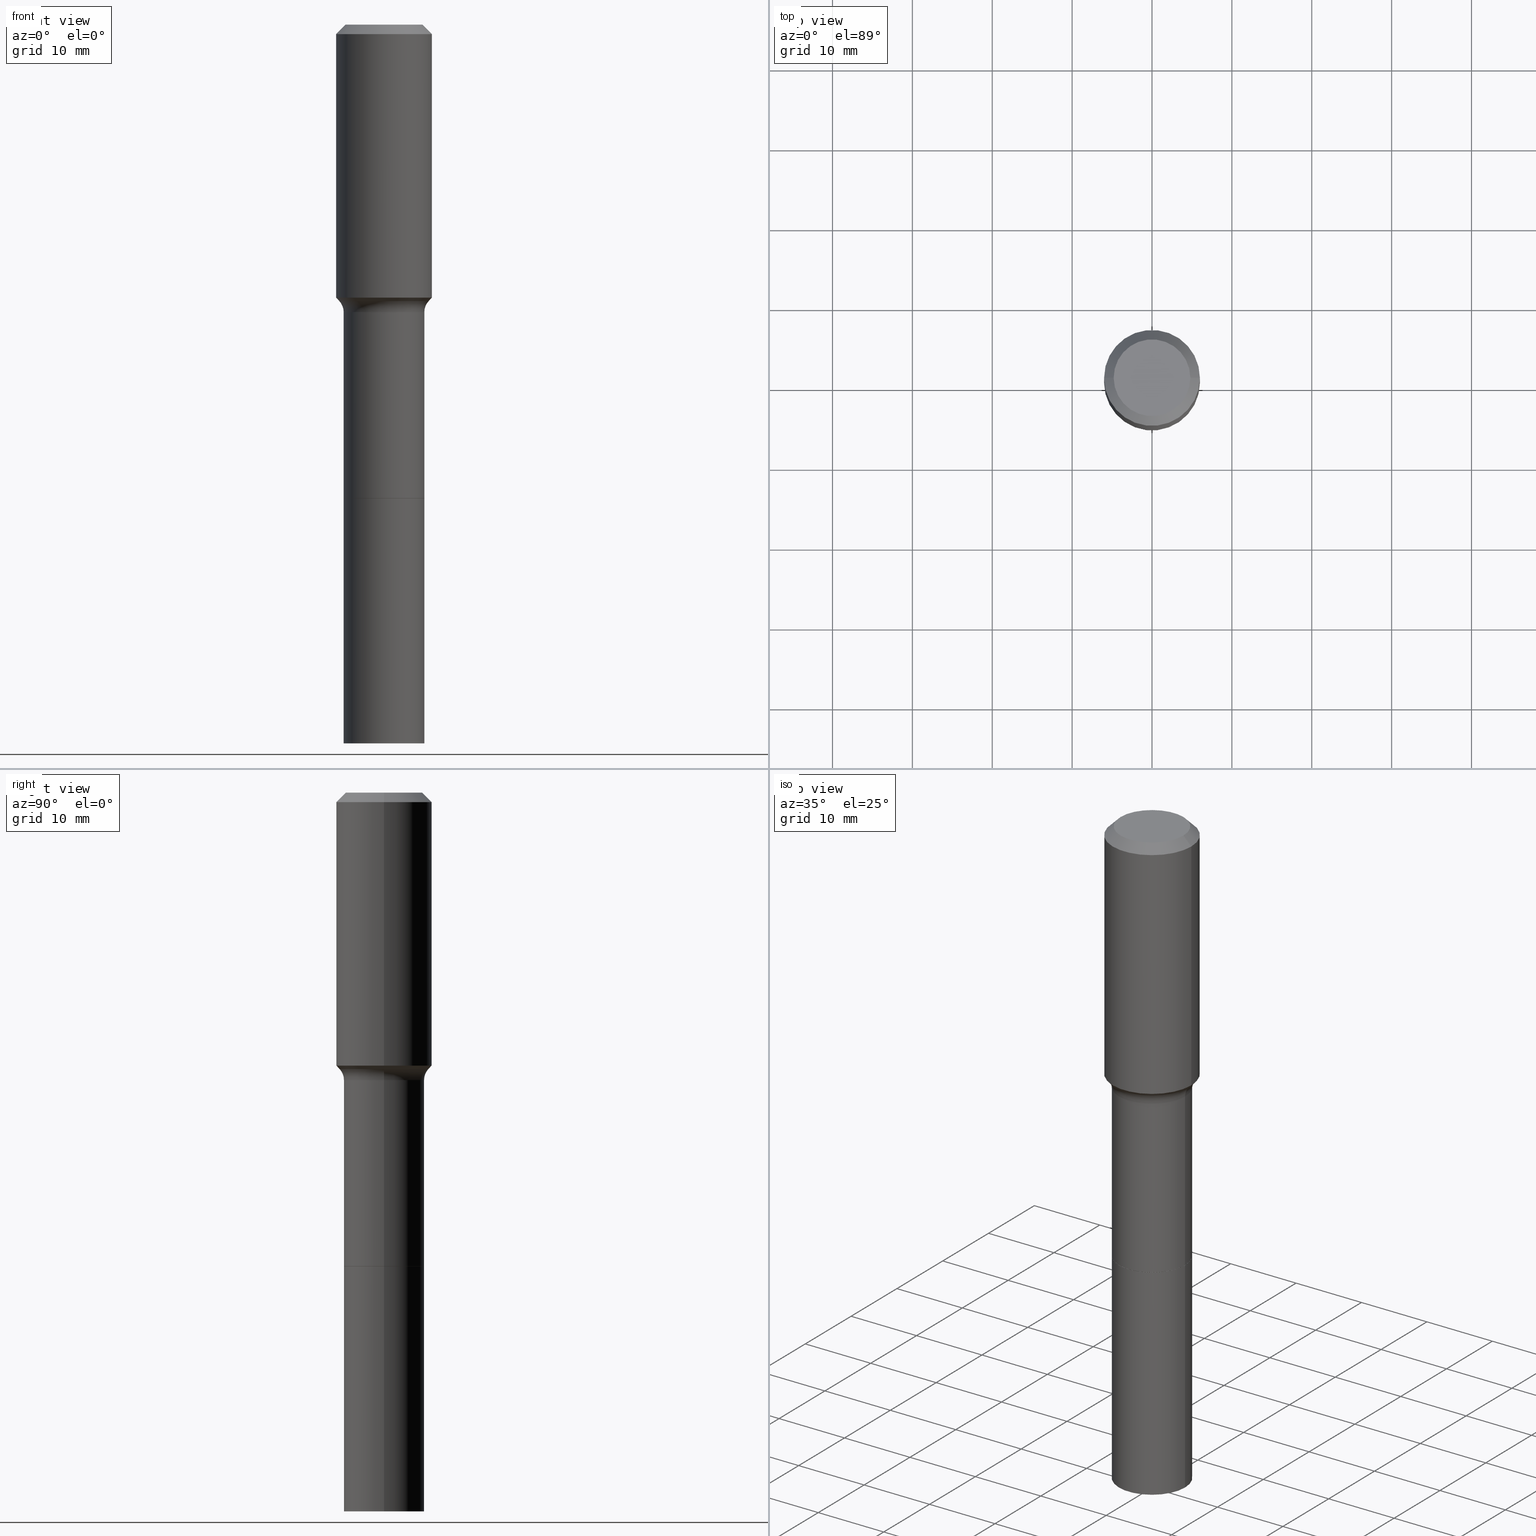
[diagram: canonical four-view strip — front | top / right | iso, engineering-drawing reading convention]
A machine part, canonical four-view strip (front | top / right | iso — engineering-drawing reading convention). The complete STEP part file that produces these views, byte-faithful:
ISO-10303-21;
HEADER;
FILE_DESCRIPTION (( 'STEP AP203' ),
    '1' );
FILE_NAME ('67778.STEP',
    '2025-04-01T15:30:27',
    ( '' ),
    ( '' ),
    'SwSTEP 2.0',
    'SolidWorks 2024',
    '' );
FILE_SCHEMA (( 'CONFIG_CONTROL_DESIGN' ));
ENDSEC;

DATA;
#1 = CARTESIAN_POINT ( 'NONE',  ( 8.665029620955794069E-29, -1.237136582792291707E-14, -3.543299999999999894 ) ) ;
#2 = ORIENTED_EDGE ( 'NONE', *, *, #351, .F. ) ;
#3 = CYLINDRICAL_SURFACE ( 'NONE', #182, 0.1988000000000000045 ) ;
#4 = EDGE_LOOP ( 'NONE', ( #105, #435, #349, #185 ) ) ;
#5 = AXIS2_PLACEMENT_3D ( 'NONE', #108, #430, #391 ) ;
#6 = AXIS2_PLACEMENT_3D ( 'NONE', #491, #92, #411 ) ;
#7 = CARTESIAN_POINT ( 'NONE',  ( 3.332538481774012867E-29, -4.757981737760002382E-15, -1.362740131195000037 ) ) ;
#8 = DIRECTION ( 'NONE',  ( 1.000000000000000000, -6.982962677686265922E-15, 4.876176775795935793E-29 ) ) ;
#9 = EDGE_CURVE ( 'NONE', #410, #212, #164, .T. ) ;
#10 = DIRECTION ( 'NONE',  ( 1.000000000000000000, 0.000000000000000000, 0.000000000000000000 ) ) ;
#11 = EDGE_CURVE ( 'NONE', #505, #212, #413, .T. ) ;
#12 = CARTESIAN_POINT ( 'NONE',  ( 3.465962939006193759E-29, -4.948476501542390442E-15, -1.417300000000000004 ) ) ;
#13 = DIRECTION ( 'NONE',  ( 1.000000000000000000, -6.982962677686266711E-15, 4.876176775795935793E-29 ) ) ;
#14 = CARTESIAN_POINT ( 'NONE',  ( 3.332538481774012867E-29, -4.757981737760002382E-15, -1.362740131195000037 ) ) ;
#15 = FACE_OUTER_BOUND ( 'NONE', #479, .T. ) ;
#16 = ORIENTED_EDGE ( 'NONE', *, *, #456, .T. ) ;
#17 = CARTESIAN_POINT ( 'NONE',  ( -0.1988000000000000045, -6.737605930570474412E-15, -2.334299999999999820 ) ) ;
#18 = AXIS2_PLACEMENT_3D ( 'NONE', #361, #236, #204 ) ;
#19 = EDGE_LOOP ( 'NONE', ( #203, #286 ) ) ;
#20 = EDGE_CURVE ( 'NONE', #464, #327, #338, .T. ) ;
#21 = CARTESIAN_POINT ( 'NONE',  ( -0.2362000000000000766, 1.678301941865357183E-15, -1.161852468318209177E-29 ) ) ;
#22 = CC_DESIGN_PERSON_AND_ORGANIZATION_ASSIGNMENT ( #272, #311, ( #222 ) ) ;
#23 = PERSON_AND_ORGANIZATION ( #426, #27 ) ;
#24 = AXIS2_PLACEMENT_3D ( 'NONE', #1, #394, #161 ) ;
#25 = EDGE_CURVE ( 'NONE', #45, #323, #76, .T. ) ;
#26 = AXIS2_PLACEMENT_3D ( 'NONE', #14, #130, #336 ) ;
#27 = ORGANIZATION ( 'UNSPECIFIED', 'UNSPECIFIED', '' ) ;
#28 = MANIFOLD_SOLID_BREP ( 'Body-Move/Copy2[2]', #63 ) ;
#29 = ORIENTED_EDGE ( 'NONE', *, *, #298, .F. ) ;
#30 = LOCAL_TIME ( 11, 30, 27.00000000000000000, #423 ) ;
#31 = FACE_OUTER_BOUND ( 'NONE', #245, .T. ) ;
#32 = FACE_OUTER_BOUND ( 'NONE', #102, .T. ) ;
#33 = ORIENTED_EDGE ( 'NONE', *, *, #207, .F. ) ;
#34 = DATE_AND_TIME ( #280, #506 ) ;
#35 = ORIENTED_EDGE ( 'NONE', *, *, #439, .F. ) ;
#36 = CIRCLE ( 'NONE', #221, 0.1988000000000000045 ) ;
#37 = DIRECTION ( 'NONE',  ( -0.7071067811865453523, 2.468850131082234184E-15, -0.7071067811865496822 ) ) ;
#38 = CYLINDRICAL_SURFACE ( 'NONE', #343, 0.2362000000000000766 ) ;
#39 = CALENDAR_DATE ( 2025, 1, 4 ) ;
#40 = CYLINDRICAL_SURFACE ( 'NONE', #189, 0.1988000000000000045 ) ;
#41 = COORDINATED_UNIVERSAL_TIME_OFFSET ( 5, 0, .BEHIND. ) ;
#42 = LINE ( 'NONE', #202, #46 ) ;
#43 = EDGE_CURVE ( 'NONE', #73, #321, #36, .T. ) ;
#44 = ADVANCED_FACE ( 'NONE', ( #354 ), #98, .T. ) ;
#45 = VERTEX_POINT ( 'NONE', #111 ) ;
#46 = VECTOR ( 'NONE', #359, 39.37007874015748854 ) ;
#47 = DIRECTION ( 'NONE',  ( 0.7071067811865453523, -7.319954787623248157E-15, -0.7071067811865496822 ) ) ;
#48 = ORIENTED_EDGE ( 'NONE', *, *, #507, .T. ) ;
#49 = FACE_OUTER_BOUND ( 'NONE', #256, .T. ) ;
#50 = ORIENTED_EDGE ( 'NONE', *, *, #422, .T. ) ;
#51 = CARTESIAN_POINT ( 'NONE',  ( 0.2361999999999999933, -1.814313362916447440E-15, -0.04724000000000028870 ) ) ;
#52 = CONICAL_SURFACE ( 'NONE', #26, 0.2202917038704662045, 0.7504915783575657473 ) ;
#53 = DIRECTION ( 'NONE',  ( -2.445468806185136597E-29, 3.491481338843145583E-15, 1.000000000000000000 ) ) ;
#54 = PERSON_AND_ORGANIZATION ( #426, #27 ) ;
#55 = EDGE_LOOP ( 'NONE', ( #362, #382 ) ) ;
#56 = DIRECTION ( 'NONE',  ( -1.000000000000000000, 6.982962677686266711E-15, 0.000000000000000000 ) ) ;
#57 = CARTESIAN_POINT ( 'NONE',  ( 0.1988000000000000045, -1.388212980324029928E-15, 9.693839430282320098E-30 ) ) ;
#58 = ORIENTED_EDGE ( 'NONE', *, *, #456, .F. ) ;
#59 = CARTESIAN_POINT ( 'NONE',  ( 5.708457834277963987E-29, -8.150164889261554205E-15, -2.334299999999999820 ) ) ;
#60 = DIRECTION ( 'NONE',  ( 1.000000000000000000, -6.982962677686273810E-15, 0.000000000000000000 ) ) ;
#61 = ADVANCED_FACE ( 'NONE', ( #81 ), #357, .T. ) ;
#62 = CARTESIAN_POINT ( 'NONE',  ( 0.1983000000000000040, -9.534886388246739745E-15, -2.334299999999999820 ) ) ;
#63 = CLOSED_SHELL ( 'NONE', ( #296, #304, #160, #409, #106, #94, #230, #356, #428, #477, #136, #155, #363, #44 ) ) ;
#64 = PERSON_AND_ORGANIZATION_ROLE ( 'classification_officer' ) ;
#65 = CARTESIAN_POINT ( 'NONE',  ( 0.000000000000000000, 0.000000000000000000, 0.000000000000000000 ) ) ;
#66 = CALENDAR_DATE ( 2025, 1, 4 ) ;
#67 = UNCERTAINTY_MEASURE_WITH_UNIT (LENGTH_MEASURE( 1.000000000000000082E-05 ), #90, 'distance_accuracy_value', 'NONE');
#68 = ORIENTED_EDGE ( 'NONE', *, *, #248, .T. ) ;
#69 = CLOSED_SHELL ( 'NONE', ( #193, #61, #378, #460 ) ) ;
#70 = VECTOR ( 'NONE', #297, 39.37007874015748143 ) ;
#71 = ORIENTED_EDGE ( 'NONE', *, *, #9, .F. ) ;
#72 = APPROVAL_PERSON_ORGANIZATION ( #141, #100, #259 ) ;
#73 = VERTEX_POINT ( 'NONE', #271 ) ;
#74 = DIRECTION ( 'NONE',  ( -2.445468806185136877E-29, 3.491481338843145188E-15, 1.000000000000000000 ) ) ;
#75 = AXIS2_PLACEMENT_3D ( 'NONE', #246, #83, #8 ) ;
#76 = LINE ( 'NONE', #313, #150 ) ;
#77 = EDGE_CURVE ( 'NONE', #231, #445, #241, .T. ) ;
#78 = DIRECTION ( 'NONE',  ( -2.445468806185136597E-29, 3.491481338843145583E-15, 1.000000000000000000 ) ) ;
#79 = CARTESIAN_POINT ( 'NONE',  ( 3.465962939006193759E-29, -4.948476501542390442E-15, -1.417300000000000004 ) ) ;
#80 = CIRCLE ( 'NONE', #415, 0.2202917038704662045 ) ;
#81 = FACE_OUTER_BOUND ( 'NONE', #277, .T. ) ;
#82 = EDGE_CURVE ( 'NONE', #310, #170, #438, .T. ) ;
#83 = DIRECTION ( 'NONE',  ( -2.438088387897960049E-29, 3.491481338843145188E-15, 1.000000000000000000 ) ) ;
#84 = ORIENTED_EDGE ( 'NONE', *, *, #20, .F. ) ;
#85 = DIRECTION ( 'NONE',  ( -2.445468806185136597E-29, 3.491481338843145583E-15, 1.000000000000000000 ) ) ;
#86 = ORIENTED_EDGE ( 'NONE', *, *, #469, .T. ) ;
#87 = VECTOR ( 'NONE', #37, 39.37007874015748143 ) ;
#88 = CONICAL_SURFACE ( 'NONE', #227, 0.2202917038704662045, 0.7504915783575657473 ) ;
#89 = CARTESIAN_POINT ( 'NONE',  ( 5.708457834277963987E-29, -8.150164889261554205E-15, -2.334299999999999820 ) ) ;
#90 =( CONVERSION_BASED_UNIT ( 'INCH', #414 ) LENGTH_UNIT ( ) NAMED_UNIT ( #407 ) );
#91 = DIRECTION ( 'NONE',  ( -2.445468806185136597E-29, 3.491481338843145583E-15, 1.000000000000000000 ) ) ;
#92 = DIRECTION ( 'NONE',  ( -2.445468806185136597E-29, 3.491481338843145583E-15, 1.000000000000000000 ) ) ;
#93 = CYLINDRICAL_SURFACE ( 'NONE', #112, 0.1988000000000000045 ) ;
#94 = ADVANCED_FACE ( 'NONE', ( #467 ), #40, .T. ) ;
#95 = CARTESIAN_POINT ( 'NONE',  ( 8.665029620955794069E-29, -1.237136582792291707E-14, -3.543299999999999894 ) ) ;
#96 = ORIENTED_EDGE ( 'NONE', *, *, #208, .F. ) ;
#97 = FACE_OUTER_BOUND ( 'NONE', #4, .T. ) ;
#98 = CONICAL_SURFACE ( 'NONE', #436, 0.1983000000000000040, 0.7853981633975849475 ) ;
#99 = CIRCLE ( 'NONE', #144, 0.07999999999999983513 ) ;
#100 = APPROVAL ( #306, 'UNSPECIFIED' ) ;
#101 = CARTESIAN_POINT ( 'NONE',  ( 5.708457834277963987E-29, -8.150164889261554205E-15, -2.334299999999999820 ) ) ;
#102 = EDGE_LOOP ( 'NONE', ( #29, #283, #443, #476 ) ) ;
#103 = ORIENTED_EDGE ( 'NONE', *, *, #507, .F. ) ;
#104 = CIRCLE ( 'NONE', #135, 0.2361999999999999933 ) ;
#105 = ORIENTED_EDGE ( 'NONE', *, *, #255, .F. ) ;
#106 = ADVANCED_FACE ( 'NONE', ( #353 ), #309, .F. ) ;
#107 = EDGE_CURVE ( 'NONE', #323, #170, #104, .T. ) ;
#108 = CARTESIAN_POINT ( 'NONE',  ( 1.155239464041865682E-30, -1.649375784469512105E-16, -0.04724000000000028870 ) ) ;
#109 = APPROVAL_DATE_TIME ( #34, #186 ) ;
#110 = FACE_OUTER_BOUND ( 'NONE', #335, .T. ) ;
#111 = CARTESIAN_POINT ( 'NONE',  ( 0.1889600000000000168, -1.540873453589747738E-15, 3.855188123725863225E-18 ) ) ;
#112 = AXIS2_PLACEMENT_3D ( 'NONE', #295, #366, #402 ) ;
#113 = APPROVAL_PERSON_ORGANIZATION ( #201, #186, #516 ) ;
#114 = CARTESIAN_POINT ( 'NONE',  ( -0.2361999999999999933, 1.484438206022545019E-15, -0.04724000000000028870 ) ) ;
#115 = APPROVAL_ROLE ( '' ) ;
#116 = VERTEX_POINT ( 'NONE', #315 ) ;
#117 = DIRECTION ( 'NONE',  ( 1.000000000000000000, -6.982962677686266711E-15, 4.876176775795935793E-29 ) ) ;
#118 = ORIENTED_EDGE ( 'NONE', *, *, #319, .T. ) ;
#119 = DIRECTION ( 'NONE',  ( 1.000000000000000000, -6.982962677686266711E-15, 4.883557194083112901E-29 ) ) ;
#120 = CONICAL_SURFACE ( 'NONE', #493, 0.1983000000000000040, 0.7853981633975849475 ) ;
#121 = ORIENTED_EDGE ( 'NONE', *, *, #11, .F. ) ;
#122 = ADVANCED_BREP_SHAPE_REPRESENTATION ( '67778', ( #376, #28, #262 ), #151 ) ;
#123 = DIRECTION ( 'NONE',  ( -0.7071067811866441621, 7.493145998870704414E-15, 0.7071067811864508723 ) ) ;
#124 = LINE ( 'NONE', #404, #513 ) ;
#125 = ORIENTED_EDGE ( 'NONE', *, *, #503, .T. ) ;
#126 = SECURITY_CLASSIFICATION ( '', '', #301 ) ;
#127 = CARTESIAN_POINT ( 'NONE',  ( 0.2362000000000000766, -1.649375784469496722E-15, 1.151752954443000368E-29 ) ) ;
#128 = DIRECTION ( 'NONE',  ( -2.445468806185136597E-29, 3.491481338843145583E-15, 1.000000000000000000 ) ) ;
#129 = DIRECTION ( 'NONE',  ( -2.445468806185136597E-29, 3.491481338843145583E-15, 1.000000000000000000 ) ) ;
#130 = DIRECTION ( 'NONE',  ( -2.445468806185136597E-29, 3.491481338843145583E-15, 1.000000000000000000 ) ) ;
#131 = CARTESIAN_POINT ( 'NONE',  ( -0.1889600000000000168, 1.401969416799070942E-15, 3.855188123706346622E-18 ) ) ;
#132 = CARTESIAN_POINT ( 'NONE',  ( 0.1983000000000000040, -9.534886388246739745E-15, -2.334299999999999820 ) ) ;
#133 = ORIENTED_EDGE ( 'NONE', *, *, #373, .F. ) ;
#134 = EDGE_CURVE ( 'NONE', #327, #73, #473, .T. ) ;
#135 = AXIS2_PLACEMENT_3D ( 'NONE', #510, #509, #275 ) ;
#136 = ADVANCED_FACE ( 'NONE', ( #274 ), #405, .T. ) ;
#137 = DIRECTION ( 'NONE',  ( -2.445468806185136597E-29, 3.491481338843145583E-15, 1.000000000000000000 ) ) ;
#138 = ORIENTED_EDGE ( 'NONE', *, *, #180, .F. ) ;
#139 = CARTESIAN_POINT ( 'NONE',  ( 0.1987999999999999490, -6.336689481866418990E-15, -1.417300000000000004 ) ) ;
#140 = CARTESIAN_POINT ( 'NONE',  ( 0.2787999999999998813, -6.895326496081319853E-15, -1.417299999999999560 ) ) ;
#141 = PERSON_AND_ORGANIZATION ( #426, #27 ) ;
#142 = CYLINDRICAL_SURFACE ( 'NONE', #463, 0.2362000000000000766 ) ;
#143 = AXIS2_PLACEMENT_3D ( 'NONE', #400, #190, #352 ) ;
#144 = AXIS2_PLACEMENT_3D ( 'NONE', #140, #300, #60 ) ;
#145 = CARTESIAN_POINT ( 'NONE',  ( 8.665029620955794069E-29, -1.237136582792291707E-14, -3.543299999999999894 ) ) ;
#146 = CARTESIAN_POINT ( 'NONE',  ( 5.708457834277963987E-29, -8.150164889261554205E-15, -2.334299999999999820 ) ) ;
#147 = EDGE_LOOP ( 'NONE', ( #162, #16, #217, #418 ) ) ;
#148 = CC_DESIGN_DATE_AND_TIME_ASSIGNMENT ( #303, #379, ( #126 ) ) ;
#149 = ORIENTED_EDGE ( 'NONE', *, *, #43, .T. ) ;
#150 = VECTOR ( 'NONE', #47, 39.37007874015748143 ) ;
#151 =( GEOMETRIC_REPRESENTATION_CONTEXT ( 3 ) GLOBAL_UNCERTAINTY_ASSIGNED_CONTEXT ( ( #67 ) ) GLOBAL_UNIT_ASSIGNED_CONTEXT ( ( #90, #223, #219 ) ) REPRESENTATION_CONTEXT ( 'NONE', 'WORKASPACE' ) );
#152 = FACE_OUTER_BOUND ( 'NONE', #55, .T. ) ;
#153 = PRODUCT ( '67778', '67778', '', ( #331 ) ) ;
#154 = CARTESIAN_POINT ( 'NONE',  ( 0.1988000000000000045, -9.538377869585582753E-15, -2.334299999999999820 ) ) ;
#155 = ADVANCED_FACE ( 'NONE', ( #152 ), #511, .F. ) ;
#156 = DIRECTION ( 'NONE',  ( -2.445468806185136597E-29, 3.491481338843145583E-15, 1.000000000000000000 ) ) ;
#157 = CIRCLE ( 'NONE', #211, 0.1889600000000000168 ) ;
#158 = DIRECTION ( 'NONE',  ( -2.445468806185136597E-29, 3.491481338843145583E-15, 1.000000000000000000 ) ) ;
#159 = PERSON_AND_ORGANIZATION ( #426, #27 ) ;
#160 = ADVANCED_FACE ( 'NONE', ( #392 ), #38, .T. ) ;
#161 = DIRECTION ( 'NONE',  ( -1.000000000000000000, 6.982962677686265922E-15, -4.876176775795935793E-29 ) ) ;
#162 = ORIENTED_EDGE ( 'NONE', *, *, #77, .T. ) ;
#163 = DIRECTION ( 'NONE',  ( -2.445468806185136597E-29, 3.491481338843145583E-15, 1.000000000000000000 ) ) ;
#164 = CIRCLE ( 'NONE', #317, 0.1988000000000000322 ) ;
#165 = EDGE_LOOP ( 'NONE', ( #58, #233, #517, #461 ) ) ;
#166 = VECTOR ( 'NONE', #332, 39.37007874015748143 ) ;
#167 = DIRECTION ( 'NONE',  ( 1.000000000000000000, -6.982962677686266711E-15, 0.000000000000000000 ) ) ;
#168 = DIRECTION ( 'NONE',  ( 1.000000000000000000, -6.982962677686266711E-15, 4.876185090822587894E-29 ) ) ;
#169 = APPLICATION_PROTOCOL_DEFINITION ( 'international standard', 'config_control_design', 1994, #482 ) ;
#170 = VERTEX_POINT ( 'NONE', #478 ) ;
#171 = DIRECTION ( 'NONE',  ( -2.445468806185136597E-29, 3.491481338843145583E-15, 1.000000000000000000 ) ) ;
#172 = LINE ( 'NONE', #57, #70 ) ;
#173 = EDGE_CURVE ( 'NONE', #445, #231, #380, .T. ) ;
#174 = DIRECTION ( 'NONE',  ( -2.445468806185136597E-29, 3.491481338843145583E-15, 1.000000000000000000 ) ) ;
#175 = ORIENTED_EDGE ( 'NONE', *, *, #82, .F. ) ;
#176 = AXIS2_PLACEMENT_3D ( 'NONE', #89, #171, #288 ) ;
#177 = FACE_OUTER_BOUND ( 'NONE', #19, .T. ) ;
#178 = DIRECTION ( 'NONE',  ( 1.000000000000000000, -6.982962677686261977E-15, 0.000000000000000000 ) ) ;
#179 = ORIENTED_EDGE ( 'NONE', *, *, #207, .T. ) ;
#180 = EDGE_CURVE ( 'NONE', #265, #252, #234, .T. ) ;
#181 = DIRECTION ( 'NONE',  ( 2.438088387897960049E-29, -3.491481338843145188E-15, -1.000000000000000000 ) ) ;
#182 = AXIS2_PLACEMENT_3D ( 'NONE', #412, #364, #341 ) ;
#183 = SHAPE_DEFINITION_REPRESENTATION ( #514, #122 ) ;
#184 = EDGE_CURVE ( 'NONE', #321, #73, #302, .T. ) ;
#185 = ORIENTED_EDGE ( 'NONE', *, *, #248, .F. ) ;
#186 = APPROVAL ( #358, 'UNSPECIFIED' ) ;
#187 = CYLINDRICAL_SURFACE ( 'NONE', #494, 0.1988000000000000045 ) ;
#188 = ORIENTED_EDGE ( 'NONE', *, *, #43, .F. ) ;
#189 = AXIS2_PLACEMENT_3D ( 'NONE', #515, #431, #427 ) ;
#190 = DIRECTION ( 'NONE',  ( -2.445468806185136597E-29, 3.491481338843145583E-15, 1.000000000000000000 ) ) ;
#191 = PRODUCT_RELATED_PRODUCT_CATEGORY ( 'detail', '', ( #153 ) ) ;
#192 = DIRECTION ( 'NONE',  ( 1.000000000000000000, -6.982962677686261977E-15, 0.000000000000000000 ) ) ;
#193 = ADVANCED_FACE ( 'NONE', ( #492 ), #93, .T. ) ;
#194 = DIRECTION ( 'NONE',  ( -1.000000000000000000, 6.982962677686265922E-15, -4.876176775795935793E-29 ) ) ;
#195 = CC_DESIGN_SECURITY_CLASSIFICATION ( #126, ( #222 ) ) ;
#196 = DIRECTION ( 'NONE',  ( 2.438088387897960049E-29, -3.491481338843145188E-15, -1.000000000000000000 ) ) ;
#197 = DATE_AND_TIME ( #39, #326 ) ;
#198 = APPLICATION_CONTEXT ( 'configuration controlled 3d designs of mechanical parts and assemblies' ) ;
#199 = CARTESIAN_POINT ( 'NONE',  ( -0.1983000000000000040, -6.741158644249275311E-15, -2.334299999999999820 ) ) ;
#200 = DIRECTION ( 'NONE',  ( -2.445468806185136597E-29, 3.491481338843145583E-15, 1.000000000000000000 ) ) ;
#201 = PERSON_AND_ORGANIZATION ( #426, #27 ) ;
#202 = CARTESIAN_POINT ( 'NONE',  ( -0.2202917038704662045, -3.192715038426253305E-15, -1.362740131195000037 ) ) ;
#203 = ORIENTED_EDGE ( 'NONE', *, *, #264, .F. ) ;
#204 = DIRECTION ( 'NONE',  ( 1.000000000000000000, -6.982962677686268288E-15, 0.000000000000000000 ) ) ;
#205 = DIRECTION ( 'NONE',  ( 7.105427357601001859E-15, 1.000000000000000000, -3.491481338843145583E-15 ) ) ;
#206 = ORIENTED_EDGE ( 'NONE', *, *, #11, .T. ) ;
#207 = EDGE_CURVE ( 'NONE', #474, #116, #367, .T. ) ;
#208 = EDGE_CURVE ( 'NONE', #45, #310, #157, .T. ) ;
#209 = LINE ( 'NONE', #17, #266 ) ;
#210 = CARTESIAN_POINT ( 'NONE',  ( 1.155239464041865682E-30, -1.649375784469512105E-16, -0.04724000000000028870 ) ) ;
#211 = AXIS2_PLACEMENT_3D ( 'NONE', #489, #455, #168 ) ;
#212 = VERTEX_POINT ( 'NONE', #291 ) ;
#213 = CIRCLE ( 'NONE', #242, 0.07999999999999983513 ) ;
#214 = DIRECTION ( 'NONE',  ( 1.000000000000000000, -6.982962677686266711E-15, 0.000000000000000000 ) ) ;
#215 = ORIENTED_EDGE ( 'NONE', *, *, #82, .T. ) ;
#216 = CARTESIAN_POINT ( 'NONE',  ( 3.465962939006193198E-29, -4.948476501542388865E-15, -1.417299999999999560 ) ) ;
#217 = ORIENTED_EDGE ( 'NONE', *, *, #107, .F. ) ;
#218 = DIRECTION ( 'NONE',  ( 1.000000000000000000, -6.982962677686266711E-15, 4.883557194083112901E-29 ) ) ;
#219 =( NAMED_UNIT ( * ) SI_UNIT ( $, .STERADIAN. ) SOLID_ANGLE_UNIT ( ) );
#220 = EDGE_LOOP ( 'NONE', ( #360, #118, #206, #71 ) ) ;
#221 = AXIS2_PLACEMENT_3D ( 'NONE', #470, #156, #192 ) ;
#222 = PRODUCT_DEFINITION_FORMATION_WITH_SPECIFIED_SOURCE ( 'ANY', '', #153, .NOT_KNOWN. ) ;
#223 =( NAMED_UNIT ( * ) PLANE_ANGLE_UNIT ( ) SI_UNIT ( $, .RADIAN. ) );
#224 = DIRECTION ( 'NONE',  ( 0.000000000000000000, 0.000000000000000000, 1.000000000000000000 ) ) ;
#225 = DATE_AND_TIME ( #299, #465 ) ;
#226 = AXIS2_PLACEMENT_3D ( 'NONE', #79, #281, #239 ) ;
#227 = AXIS2_PLACEMENT_3D ( 'NONE', #7, #329, #167 ) ;
#228 = DIRECTION ( 'NONE',  ( -2.445468806185136597E-29, 3.491481338843145583E-15, 1.000000000000000000 ) ) ;
#229 = ORIENTED_EDGE ( 'NONE', *, *, #393, .T. ) ;
#230 = ADVANCED_FACE ( 'NONE', ( #97 ), #3, .T. ) ;
#231 = VERTEX_POINT ( 'NONE', #372 ) ;
#232 = CARTESIAN_POINT ( 'NONE',  ( -0.1988000000000000045, -8.848206399901156635E-15, -3.543299999999999894 ) ) ;
#233 = ORIENTED_EDGE ( 'NONE', *, *, #173, .T. ) ;
#234 = CIRCLE ( 'NONE', #226, 0.1987999999999999490 ) ;
#235 = CARTESIAN_POINT ( 'NONE',  ( 3.465962939006193198E-29, -4.948476501542388865E-15, -1.417299999999999560 ) ) ;
#236 = DIRECTION ( 'NONE',  ( -2.445468806185136597E-29, 3.491481338843145583E-15, 1.000000000000000000 ) ) ;
#237 = CARTESIAN_POINT ( 'NONE',  ( 5.708457834277963987E-29, -8.150164889261554205E-15, -2.334299999999999820 ) ) ;
#238 = APPROVAL_STATUS ( 'not_yet_approved' ) ;
#239 = DIRECTION ( 'NONE',  ( 1.000000000000000000, -6.982962677686264344E-15, 0.000000000000000000 ) ) ;
#240 = CC_DESIGN_PERSON_AND_ORGANIZATION_ASSIGNMENT ( #23, #64, ( #126 ) ) ;
#241 = CIRCLE ( 'NONE', #18, 0.2362000000000001598 ) ;
#242 = AXIS2_PLACEMENT_3D ( 'NONE', #330, #205, #399 ) ;
#243 = ORIENTED_EDGE ( 'NONE', *, *, #422, .F. ) ;
#244 = DIRECTION ( 'NONE',  ( -1.000000000000000000, 6.982962677686265922E-15, -4.876176775795935793E-29 ) ) ;
#245 = EDGE_LOOP ( 'NONE', ( #149, #269 ) ) ;
#246 = CARTESIAN_POINT ( 'NONE',  ( 5.708457834277963987E-29, -8.150164889261554205E-15, -2.334299999999999820 ) ) ;
#247 = EDGE_LOOP ( 'NONE', ( #339, #133, #215, #495 ) ) ;
#248 = EDGE_CURVE ( 'NONE', #252, #265, #273, .T. ) ;
#249 = LINE ( 'NONE', #371, #458 ) ;
#250 = CARTESIAN_POINT ( 'NONE',  ( -0.1987999999999999490, -5.135888866376182173E-15, -1.417300000000000004 ) ) ;
#251 = CIRCLE ( 'NONE', #419, 0.2361999999999999933 ) ;
#252 = VERTEX_POINT ( 'NONE', #250 ) ;
#253 = CARTESIAN_POINT ( 'NONE',  ( 5.708457834277963987E-29, -8.150164889261554205E-15, -2.334299999999999820 ) ) ;
#254 = DIRECTION ( 'NONE',  ( 1.000000000000000000, -6.982962677686261977E-15, 0.000000000000000000 ) ) ;
#255 = EDGE_CURVE ( 'NONE', #410, #252, #124, .T. ) ;
#256 = EDGE_LOOP ( 'NONE', ( #374, #229, #35, #121 ) ) ;
#257 = CARTESIAN_POINT ( 'NONE',  ( -0.1983000000000000040, -6.738509417075164110E-15, -2.334299999999999820 ) ) ;
#258 = DIRECTION ( 'NONE',  ( 1.000000000000000000, -6.982962677686265133E-15, 0.000000000000000000 ) ) ;
#259 = APPROVAL_ROLE ( '' ) ;
#260 = PRODUCT_DEFINITION ( 'UNKNOWN', '', #222, #451 ) ;
#261 = AXIS2_PLACEMENT_3D ( 'NONE', #253, #53, #258 ) ;
#262 = AXIS2_PLACEMENT_3D ( 'NONE', #65, #224, #10 ) ;
#263 = DIRECTION ( 'NONE',  ( -2.445468806185136877E-29, 3.491481338843145188E-15, 1.000000000000000000 ) ) ;
#264 = EDGE_CURVE ( 'NONE', #505, #450, #471, .T. ) ;
#265 = VERTEX_POINT ( 'NONE', #139 ) ;
#266 = VECTOR ( 'NONE', #324, 39.37007874015748143 ) ;
#267 = AXIS2_PLACEMENT_3D ( 'NONE', #146, #181, #194 ) ;
#268 = ORIENTED_EDGE ( 'NONE', *, *, #503, .F. ) ;
#269 = ORIENTED_EDGE ( 'NONE', *, *, #184, .T. ) ;
#270 = APPROVAL ( #238, 'UNSPECIFIED' ) ;
#271 = CARTESIAN_POINT ( 'NONE',  ( 0.1988000000000000045, -9.538377869585582753E-15, -2.334299999999999820 ) ) ;
#272 = PERSON_AND_ORGANIZATION ( #426, #27 ) ;
#273 = CIRCLE ( 'NONE', #282, 0.1987999999999999490 ) ;
#274 = FACE_OUTER_BOUND ( 'NONE', #247, .T. ) ;
#275 = DIRECTION ( 'NONE',  ( 1.000000000000000000, -6.982962677686266711E-15, 0.000000000000000000 ) ) ;
#276 = APPROVAL_DATE_TIME ( #468, #270 ) ;
#277 = EDGE_LOOP ( 'NONE', ( #268, #84 ) ) ;
#278 = CC_DESIGN_PERSON_AND_ORGANIZATION_ASSIGNMENT ( #432, #512, ( #260 ) ) ;
#279 = DIRECTION ( 'NONE',  ( -2.445468806185136597E-29, 3.491481338843145583E-15, 1.000000000000000000 ) ) ;
#280 = CALENDAR_DATE ( 2025, 1, 4 ) ;
#281 = DIRECTION ( 'NONE',  ( -2.445468806185136597E-29, 3.491481338843145583E-15, 1.000000000000000000 ) ) ;
#282 = AXIS2_PLACEMENT_3D ( 'NONE', #12, #85, #496 ) ;
#283 = ORIENTED_EDGE ( 'NONE', *, *, #20, .T. ) ;
#284 = DIRECTION ( 'NONE',  ( -2.445468806185136597E-29, 3.491481338843145583E-15, 1.000000000000000000 ) ) ;
#285 = EDGE_CURVE ( 'NONE', #170, #323, #251, .T. ) ;
#286 = ORIENTED_EDGE ( 'NONE', *, *, #319, .F. ) ;
#287 = CARTESIAN_POINT ( 'NONE',  ( -0.1988000000000000045, -8.848206399901156635E-15, -2.334299999999999820 ) ) ;
#288 = DIRECTION ( 'NONE',  ( 1.000000000000000000, -6.982962677686265133E-15, 0.000000000000000000 ) ) ;
#289 = DIRECTION ( 'NONE',  ( 1.000000000000000000, -6.982962677686265922E-15, 0.000000000000000000 ) ) ;
#290 = VECTOR ( 'NONE', #263, 39.37007874015748143 ) ;
#291 = CARTESIAN_POINT ( 'NONE',  ( 0.1988000000000000322, -9.536632128916162038E-15, -2.333799999999999653 ) ) ;
#292 = CARTESIAN_POINT ( 'NONE',  ( 0.000000000000000000, 0.000000000000000000, 0.000000000000000000 ) ) ;
#293 = CARTESIAN_POINT ( 'NONE',  ( 5.707235099874871185E-29, -8.148419148592131913E-15, -2.333799999999999653 ) ) ;
#294 = DIRECTION ( 'NONE',  ( 0.6819983600625012521, -2.208861293262505385E-15, 0.7313537016191676843 ) ) ;
#295 = CARTESIAN_POINT ( 'NONE',  ( 5.708457834277963987E-29, -8.150164889261554205E-15, -2.334299999999999820 ) ) ;
#296 = ADVANCED_FACE ( 'NONE', ( #49 ), #120, .T. ) ;
#297 = DIRECTION ( 'NONE',  ( -2.445468806185136877E-29, 3.491481338843145188E-15, 1.000000000000000000 ) ) ;
#298 = EDGE_CURVE ( 'NONE', #464, #321, #209, .T. ) ;
#299 = CALENDAR_DATE ( 2025, 1, 4 ) ;
#300 = DIRECTION ( 'NONE',  ( -6.982962677686266711E-15, -1.000000000000000000, 3.491481338843145583E-15 ) ) ;
#301 = SECURITY_CLASSIFICATION_LEVEL ( 'unclassified' ) ;
#302 = CIRCLE ( 'NONE', #143, 0.1988000000000000045 ) ;
#303 = DATE_AND_TIME ( #66, #30 ) ;
#304 = ADVANCED_FACE ( 'NONE', ( #15 ), #396, .T. ) ;
#305 = ORIENTED_EDGE ( 'NONE', *, *, #25, .T. ) ;
#306 = APPROVAL_STATUS ( 'not_yet_approved' ) ;
#307 = ORIENTED_EDGE ( 'NONE', *, *, #518, .F. ) ;
#308 = COORDINATED_UNIVERSAL_TIME_OFFSET ( 5, 0, .BEHIND. ) ;
#309 = TOROIDAL_SURFACE ( 'NONE', #457, 0.2787999999999998813, 0.07999999999999984901 ) ;
#310 = VERTEX_POINT ( 'NONE', #131 ) ;
#311 = PERSON_AND_ORGANIZATION_ROLE ( 'creator' ) ;
#312 = DIRECTION ( 'NONE',  ( 1.000000000000000000, -6.982962677686261977E-15, 0.000000000000000000 ) ) ;
#313 = CARTESIAN_POINT ( 'NONE',  ( 0.2361999999999999933, -1.785387205520586782E-15, -0.04724000000000028870 ) ) ;
#314 = CALENDAR_DATE ( 2025, 1, 4 ) ;
#315 = CARTESIAN_POINT ( 'NONE',  ( -0.2202917038704662045, -3.192715038426254094E-15, -1.362740131195000037 ) ) ;
#316 = APPLICATION_PROTOCOL_DEFINITION ( 'international standard', 'config_control_design', 1994, #198 ) ;
#317 = AXIS2_PLACEMENT_3D ( 'NONE', #293, #498, #289 ) ;
#318 = DIRECTION ( 'NONE',  ( 1.000000000000000000, -6.982962677686265133E-15, 0.000000000000000000 ) ) ;
#319 = EDGE_CURVE ( 'NONE', #450, #505, #437, .T. ) ;
#320 = CARTESIAN_POINT ( 'NONE',  ( -4.713871149261273121E-47, 6.730158695841826722E-33, 1.927594061857931128E-18 ) ) ;
#321 = VERTEX_POINT ( 'NONE', #287 ) ;
#322 = CARTESIAN_POINT ( 'NONE',  ( 0.000000000000000000, 0.000000000000000000, 0.000000000000000000 ) ) ;
#323 = VERTEX_POINT ( 'NONE', #51 ) ;
#324 = DIRECTION ( 'NONE',  ( -2.445468806185136877E-29, 3.491481338843145188E-15, 1.000000000000000000 ) ) ;
#325 = AXIS2_PLACEMENT_3D ( 'NONE', #145, #91, #254 ) ;
#326 = LOCAL_TIME ( 11, 30, 27.00000000000000000, #388 ) ;
#327 = VERTEX_POINT ( 'NONE', #483 ) ;
#328 = CARTESIAN_POINT ( 'NONE',  ( -0.1988000000000000322, -5.135888866376181385E-15, -2.333799999999999653 ) ) ;
#329 = DIRECTION ( 'NONE',  ( -2.445468806185136597E-29, 3.491481338843145583E-15, 1.000000000000000000 ) ) ;
#330 = CARTESIAN_POINT ( 'NONE',  ( -0.2787999999999998813, -2.967483354243230390E-15, -1.417299999999999560 ) ) ;
#331 = MECHANICAL_CONTEXT ( 'NONE', #482, 'mechanical' ) ;
#332 = DIRECTION ( 'NONE',  ( -2.445468806185136877E-29, 3.491481338843145188E-15, 1.000000000000000000 ) ) ;
#333 = CARTESIAN_POINT ( 'NONE',  ( 3.332538481774012867E-29, -4.757981737760002382E-15, -1.362740131195000037 ) ) ;
#334 = FACE_OUTER_BOUND ( 'NONE', #165, .T. ) ;
#335 = EDGE_LOOP ( 'NONE', ( #179, #86, #387, #243 ) ) ;
#336 = DIRECTION ( 'NONE',  ( 1.000000000000000000, -6.982962677686266711E-15, 0.000000000000000000 ) ) ;
#337 = DIRECTION ( 'NONE',  ( 1.000000000000000000, -6.982962677686265133E-15, 0.000000000000000000 ) ) ;
#338 = CIRCLE ( 'NONE', #325, 0.1988000000000000045 ) ;
#339 = ORIENTED_EDGE ( 'NONE', *, *, #25, .F. ) ;
#340 = CC_DESIGN_DATE_AND_TIME_ASSIGNMENT ( #197, #355, ( #260 ) ) ;
#341 = DIRECTION ( 'NONE',  ( 1.000000000000000000, -6.982962677686266711E-15, 4.876176775795935793E-29 ) ) ;
#342 = DIRECTION ( 'NONE',  ( 0.7071067811866441621, -2.468850131083269169E-15, 0.7071067811864508723 ) ) ;
#343 = AXIS2_PLACEMENT_3D ( 'NONE', #322, #78, #117 ) ;
#344 = AXIS2_PLACEMENT_3D ( 'NONE', #95, #129, #178 ) ;
#345 = DIRECTION ( 'NONE',  ( -2.445468806185136597E-29, 3.491481338843145583E-15, 1.000000000000000000 ) ) ;
#346 = PLANE ( 'NONE',  #267 ) ;
#347 = EDGE_LOOP ( 'NONE', ( #490, #365, #138, #307 ) ) ;
#348 = PERSON_AND_ORGANIZATION ( #426, #27 ) ;
#349 = ORIENTED_EDGE ( 'NONE', *, *, #518, .T. ) ;
#350 = VECTOR ( 'NONE', #74, 39.37007874015748143 ) ;
#351 = EDGE_CURVE ( 'NONE', #116, #474, #80, .T. ) ;
#352 = DIRECTION ( 'NONE',  ( 1.000000000000000000, -6.982962677686261977E-15, 0.000000000000000000 ) ) ;
#353 = FACE_OUTER_BOUND ( 'NONE', #433, .T. ) ;
#354 = FACE_OUTER_BOUND ( 'NONE', #220, .T. ) ;
#355 = DATE_TIME_ROLE ( 'creation_date' ) ;
#356 = ADVANCED_FACE ( 'NONE', ( #408 ), #449, .F. ) ;
#357 = PLANE ( 'NONE',  #24 ) ;
#358 = APPROVAL_STATUS ( 'not_yet_approved' ) ;
#359 = DIRECTION ( 'NONE',  ( -0.6819983600625012521, 7.399397606724297620E-15, 0.7313537016191676843 ) ) ;
#360 = ORIENTED_EDGE ( 'NONE', *, *, #393, .F. ) ;
#361 = CARTESIAN_POINT ( 'NONE',  ( 3.290819862394392859E-29, -4.698418605865685492E-15, -1.345680572195881330 ) ) ;
#362 = ORIENTED_EDGE ( 'NONE', *, *, #373, .T. ) ;
#363 = ADVANCED_FACE ( 'NONE', ( #177 ), #442, .F. ) ;
#364 = DIRECTION ( 'NONE',  ( -2.445468806185136597E-29, 3.491481338843145583E-15, 1.000000000000000000 ) ) ;
#365 = ORIENTED_EDGE ( 'NONE', *, *, #255, .T. ) ;
#366 = DIRECTION ( 'NONE',  ( -2.445468806185136597E-29, 3.491481338843145583E-15, 1.000000000000000000 ) ) ;
#367 = CIRCLE ( 'NONE', #429, 0.2202917038704662045 ) ;
#368 = EDGE_LOOP ( 'NONE', ( #384, #33, #48, #453 ) ) ;
#369 = EDGE_CURVE ( 'NONE', #116, #252, #213, .T. ) ;
#370 = CARTESIAN_POINT ( 'NONE',  ( 1.155239464041865682E-30, -1.649375784469512105E-16, -0.04724000000000028870 ) ) ;
#371 = CARTESIAN_POINT ( 'NONE',  ( 0.2202917038704662045, -6.296270484091383663E-15, -1.362740131195000037 ) ) ;
#372 = CARTESIAN_POINT ( 'NONE',  ( 0.2362000000000001598, -6.347794390335182806E-15, -1.345680572195881330 ) ) ;
#373 = EDGE_CURVE ( 'NONE', #310, #45, #481, .T. ) ;
#374 = ORIENTED_EDGE ( 'NONE', *, *, #264, .T. ) ;
#375 = DIRECTION ( 'NONE',  ( 1.000000000000000000, -6.982962677686266711E-15, 0.000000000000000000 ) ) ;
#376 = MANIFOLD_SOLID_BREP ( 'Body-Move/Copy2[1]', #69 ) ;
#377 = DIRECTION ( 'NONE',  ( -2.445468806185136597E-29, 3.491481338843145583E-15, 1.000000000000000000 ) ) ;
#378 = ADVANCED_FACE ( 'NONE', ( #32 ), #187, .T. ) ;
#379 = DATE_TIME_ROLE ( 'classification_date' ) ;
#380 = CIRCLE ( 'NONE', #389, 0.2362000000000001598 ) ;
#381 = CIRCLE ( 'NONE', #6, 0.1988000000000000322 ) ;
#382 = ORIENTED_EDGE ( 'NONE', *, *, #208, .T. ) ;
#383 = APPROVAL_DATE_TIME ( #225, #100 ) ;
#384 = ORIENTED_EDGE ( 'NONE', *, *, #369, .F. ) ;
#385 = COORDINATED_UNIVERSAL_TIME_OFFSET ( 5, 0, .BEHIND. ) ;
#386 = CC_DESIGN_PERSON_AND_ORGANIZATION_ASSIGNMENT ( #348, #497, ( #222 ) ) ;
#387 = ORIENTED_EDGE ( 'NONE', *, *, #77, .F. ) ;
#388 = COORDINATED_UNIVERSAL_TIME_OFFSET ( 5, 0, .BEHIND. ) ;
#389 = AXIS2_PLACEMENT_3D ( 'NONE', #475, #279, #434 ) ;
#390 = CC_DESIGN_APPROVAL ( #186, ( #222 ) ) ;
#391 = DIRECTION ( 'NONE',  ( -1.000000000000000000, 6.982962677686266711E-15, 0.000000000000000000 ) ) ;
#392 = FACE_OUTER_BOUND ( 'NONE', #147, .T. ) ;
#393 = EDGE_CURVE ( 'NONE', #450, #410, #466, .T. ) ;
#394 = DIRECTION ( 'NONE',  ( 2.438088387897960049E-29, -3.491481338843145188E-15, -1.000000000000000000 ) ) ;
#395 = ORIENTED_EDGE ( 'NONE', *, *, #134, .F. ) ;
#396 = CONICAL_SURFACE ( 'NONE', #462, 0.2361999999999999933, 0.7853981633974452814 ) ;
#397 = CIRCLE ( 'NONE', #344, 0.1988000000000000045 ) ;
#398 = LOCAL_TIME ( 11, 30, 27.00000000000000000, #41 ) ;
#399 = DIRECTION ( 'NONE',  ( -1.000000000000000000, 7.105427357601001859E-15, 0.000000000000000000 ) ) ;
#400 = CARTESIAN_POINT ( 'NONE',  ( 5.708457834277963987E-29, -8.150164889261554205E-15, -2.334299999999999820 ) ) ;
#401 = ORIENTED_EDGE ( 'NONE', *, *, #173, .F. ) ;
#402 = DIRECTION ( 'NONE',  ( 1.000000000000000000, -6.982962677686261977E-15, 0.000000000000000000 ) ) ;
#403 = ORIENTED_EDGE ( 'NONE', *, *, #107, .T. ) ;
#404 = CARTESIAN_POINT ( 'NONE',  ( -0.1988000000000000045, 1.412558958691079201E-15, -9.778842959426753228E-30 ) ) ;
#405 = CONICAL_SURFACE ( 'NONE', #5, 0.2361999999999999933, 0.7853981633974452814 ) ;
#406 = AXIS2_PLACEMENT_3D ( 'NONE', #216, #174, #218 ) ;
#407 = DIMENSIONAL_EXPONENTS ( 1.000000000000000000, 0.000000000000000000, 0.000000000000000000, 0.000000000000000000, 0.000000000000000000, 0.000000000000000000, 0.000000000000000000 ) ;
#408 = FACE_OUTER_BOUND ( 'NONE', #368, .T. ) ;
#409 = ADVANCED_FACE ( 'NONE', ( #110 ), #88, .T. ) ;
#410 = VERTEX_POINT ( 'NONE', #328 ) ;
#411 = DIRECTION ( 'NONE',  ( 1.000000000000000000, -6.982962677686265922E-15, 0.000000000000000000 ) ) ;
#412 = CARTESIAN_POINT ( 'NONE',  ( 0.000000000000000000, 0.000000000000000000, 0.000000000000000000 ) ) ;
#413 = LINE ( 'NONE', #62, #447 ) ;
#414 = LENGTH_MEASURE_WITH_UNIT ( LENGTH_MEASURE( 0.02539999999999999897 ), #448 );
#415 = AXIS2_PLACEMENT_3D ( 'NONE', #446, #137, #444 ) ;
#416 = EDGE_CURVE ( 'NONE', #231, #323, #485, .T. ) ;
#417 = LINE ( 'NONE', #21, #290 ) ;
#418 = ORIENTED_EDGE ( 'NONE', *, *, #416, .F. ) ;
#419 = AXIS2_PLACEMENT_3D ( 'NONE', #210, #163, #214 ) ;
#420 = AXIS2_PLACEMENT_3D ( 'NONE', #500, #345, #508 ) ;
#421 = ORIENTED_EDGE ( 'NONE', *, *, #469, .F. ) ;
#422 = EDGE_CURVE ( 'NONE', #474, #231, #249, .T. ) ;
#423 = COORDINATED_UNIVERSAL_TIME_OFFSET ( 5, 0, .BEHIND. ) ;
#424 = ORIENTED_EDGE ( 'NONE', *, *, #298, .T. ) ;
#425 = PERSON_AND_ORGANIZATION_ROLE ( 'design_owner' ) ;
#426 = PERSON ( 'UNSPECIFIED', 'UNSPECIFIED', 'UNSPECIFIED', ('UNSPECIFIED'), ('UNSPECIFIED'), ('UNSPECIFIED') ) ;
#427 = DIRECTION ( 'NONE',  ( 1.000000000000000000, -6.982962677686266711E-15, 4.876176775795935793E-29 ) ) ;
#428 = ADVANCED_FACE ( 'NONE', ( #488 ), #52, .T. ) ;
#429 = AXIS2_PLACEMENT_3D ( 'NONE', #333, #284, #375 ) ;
#430 = DIRECTION ( 'NONE',  ( 2.445468806185136597E-29, -3.491481338843145583E-15, -1.000000000000000000 ) ) ;
#431 = DIRECTION ( 'NONE',  ( -2.445468806185136597E-29, 3.491481338843145583E-15, 1.000000000000000000 ) ) ;
#432 = PERSON_AND_ORGANIZATION ( #426, #27 ) ;
#433 = EDGE_LOOP ( 'NONE', ( #2, #441, #68, #103 ) ) ;
#434 = DIRECTION ( 'NONE',  ( 1.000000000000000000, -6.982962677686268288E-15, 0.000000000000000000 ) ) ;
#435 = ORIENTED_EDGE ( 'NONE', *, *, #9, .T. ) ;
#436 = AXIS2_PLACEMENT_3D ( 'NONE', #237, #200, #318 ) ;
#437 = CIRCLE ( 'NONE', #176, 0.1983000000000000040 ) ;
#438 = LINE ( 'NONE', #114, #87 ) ;
#439 = EDGE_CURVE ( 'NONE', #212, #410, #381, .T. ) ;
#440 = CC_DESIGN_APPROVAL ( #270, ( #260 ) ) ;
#441 = ORIENTED_EDGE ( 'NONE', *, *, #369, .T. ) ;
#442 = PLANE ( 'NONE',  #75 ) ;
#443 = ORIENTED_EDGE ( 'NONE', *, *, #134, .T. ) ;
#444 = DIRECTION ( 'NONE',  ( 1.000000000000000000, -6.982962677686266711E-15, 0.000000000000000000 ) ) ;
#445 = VERTEX_POINT ( 'NONE', #454 ) ;
#446 = CARTESIAN_POINT ( 'NONE',  ( 3.332538481774012867E-29, -4.757981737760002382E-15, -1.362740131195000037 ) ) ;
#447 = VECTOR ( 'NONE', #342, 39.37007874015748143 ) ;
#448 =( LENGTH_UNIT ( ) NAMED_UNIT ( * ) SI_UNIT ( $, .METRE. ) );
#449 = TOROIDAL_SURFACE ( 'NONE', #406, 0.2787999999999998813, 0.07999999999999984901 ) ;
#450 = VERTEX_POINT ( 'NONE', #257 ) ;
#451 = DESIGN_CONTEXT ( 'detailed design', #198, 'design' ) ;
#452 = DIRECTION ( 'NONE',  ( -2.445468806185136877E-29, 3.491481338843145188E-15, 1.000000000000000000 ) ) ;
#453 = ORIENTED_EDGE ( 'NONE', *, *, #180, .T. ) ;
#454 = CARTESIAN_POINT ( 'NONE',  ( -0.2362000000000001598, -3.020116664000327126E-15, -1.345680572195881330 ) ) ;
#455 = DIRECTION ( 'NONE',  ( -2.445468806185136597E-29, 3.491481338843145583E-15, 1.000000000000000000 ) ) ;
#456 = EDGE_CURVE ( 'NONE', #445, #170, #417, .T. ) ;
#457 = AXIS2_PLACEMENT_3D ( 'NONE', #235, #158, #119 ) ;
#458 = VECTOR ( 'NONE', #294, 39.37007874015748854 ) ;
#459 = EDGE_LOOP ( 'NONE', ( #421, #484, #50, #401 ) ) ;
#460 = ADVANCED_FACE ( 'NONE', ( #31 ), #346, .F. ) ;
#461 = ORIENTED_EDGE ( 'NONE', *, *, #285, .F. ) ;
#462 = AXIS2_PLACEMENT_3D ( 'NONE', #370, #486, #56 ) ;
#463 = AXIS2_PLACEMENT_3D ( 'NONE', #292, #377, #13 ) ;
#464 = VERTEX_POINT ( 'NONE', #232 ) ;
#465 = LOCAL_TIME ( 11, 30, 27.00000000000000000, #308 ) ;
#466 = LINE ( 'NONE', #199, #472 ) ;
#467 = FACE_OUTER_BOUND ( 'NONE', #347, .T. ) ;
#468 = DATE_AND_TIME ( #314, #398 ) ;
#469 = EDGE_CURVE ( 'NONE', #116, #445, #42, .T. ) ;
#470 = CARTESIAN_POINT ( 'NONE',  ( 5.708457834277963987E-29, -8.150164889261554205E-15, -2.334299999999999820 ) ) ;
#471 = CIRCLE ( 'NONE', #261, 0.1983000000000000040 ) ;
#472 = VECTOR ( 'NONE', #123, 39.37007874015748143 ) ;
#473 = LINE ( 'NONE', #154, #350 ) ;
#474 = VERTEX_POINT ( 'NONE', #499 ) ;
#475 = CARTESIAN_POINT ( 'NONE',  ( 3.290819862394392859E-29, -4.698418605865685492E-15, -1.345680572195881330 ) ) ;
#476 = ORIENTED_EDGE ( 'NONE', *, *, #184, .F. ) ;
#477 = ADVANCED_FACE ( 'NONE', ( #334 ), #142, .T. ) ;
#478 = CARTESIAN_POINT ( 'NONE',  ( -0.2361999999999999933, -7.533761502909610204E-16, -0.04724000000000028870 ) ) ;
#479 = EDGE_LOOP ( 'NONE', ( #96, #305, #403, #175 ) ) ;
#480 = AXIS2_PLACEMENT_3D ( 'NONE', #320, #196, #244 ) ;
#481 = CIRCLE ( 'NONE', #420, 0.1889600000000000168 ) ;
#482 = APPLICATION_CONTEXT ( 'configuration controlled 3d designs of mechanical parts and assemblies' ) ;
#483 = CARTESIAN_POINT ( 'NONE',  ( 0.1988000000000000045, -1.375957880824694562E-14, -3.543299999999999894 ) ) ;
#484 = ORIENTED_EDGE ( 'NONE', *, *, #351, .T. ) ;
#485 = LINE ( 'NONE', #127, #166 ) ;
#486 = DIRECTION ( 'NONE',  ( 2.445468806185136597E-29, -3.491481338843145583E-15, -1.000000000000000000 ) ) ;
#487 = CC_DESIGN_PERSON_AND_ORGANIZATION_ASSIGNMENT ( #54, #425, ( #153 ) ) ;
#488 = FACE_OUTER_BOUND ( 'NONE', #459, .T. ) ;
#489 = CARTESIAN_POINT ( 'NONE',  ( -9.427742298522546243E-47, 1.346031739168365344E-32, 3.855188123715862256E-18 ) ) ;
#490 = ORIENTED_EDGE ( 'NONE', *, *, #439, .T. ) ;
#491 = CARTESIAN_POINT ( 'NONE',  ( 5.707235099874871185E-29, -8.148419148592131913E-15, -2.333799999999999653 ) ) ;
#492 = FACE_OUTER_BOUND ( 'NONE', #504, .T. ) ;
#493 = AXIS2_PLACEMENT_3D ( 'NONE', #59, #128, #337 ) ;
#494 = AXIS2_PLACEMENT_3D ( 'NONE', #101, #228, #312 ) ;
#495 = ORIENTED_EDGE ( 'NONE', *, *, #285, .T. ) ;
#496 = DIRECTION ( 'NONE',  ( 1.000000000000000000, -6.982962677686264344E-15, 0.000000000000000000 ) ) ;
#497 = PERSON_AND_ORGANIZATION_ROLE ( 'design_supplier' ) ;
#498 = DIRECTION ( 'NONE',  ( -2.445468806185136597E-29, 3.491481338843145583E-15, 1.000000000000000000 ) ) ;
#499 = CARTESIAN_POINT ( 'NONE',  ( 0.2202917038704662045, -6.296270484091383663E-15, -1.362740131195000037 ) ) ;
#500 = CARTESIAN_POINT ( 'NONE',  ( -9.427742298522546243E-47, 1.346031739168365344E-32, 3.855188123715862256E-18 ) ) ;
#501 = CC_DESIGN_APPROVAL ( #100, ( #126 ) ) ;
#502 = APPROVAL_PERSON_ORGANIZATION ( #159, #270, #115 ) ;
#503 = EDGE_CURVE ( 'NONE', #327, #464, #397, .T. ) ;
#504 = EDGE_LOOP ( 'NONE', ( #125, #424, #188, #395 ) ) ;
#505 = VERTEX_POINT ( 'NONE', #132 ) ;
#506 = LOCAL_TIME ( 11, 30, 27.00000000000000000, #385 ) ;
#507 = EDGE_CURVE ( 'NONE', #474, #265, #99, .T. ) ;
#508 = DIRECTION ( 'NONE',  ( 1.000000000000000000, -6.982962677686266711E-15, 4.876185090822587894E-29 ) ) ;
#509 = DIRECTION ( 'NONE',  ( -2.445468806185136597E-29, 3.491481338843145583E-15, 1.000000000000000000 ) ) ;
#510 = CARTESIAN_POINT ( 'NONE',  ( 1.155239464041865682E-30, -1.649375784469512105E-16, -0.04724000000000028870 ) ) ;
#511 = PLANE ( 'NONE',  #480 ) ;
#512 = PERSON_AND_ORGANIZATION_ROLE ( 'creator' ) ;
#513 = VECTOR ( 'NONE', #452, 39.37007874015748143 ) ;
#514 = PRODUCT_DEFINITION_SHAPE ( 'NONE', 'NONE',  #260 ) ;
#515 = CARTESIAN_POINT ( 'NONE',  ( 0.000000000000000000, 0.000000000000000000, 0.000000000000000000 ) ) ;
#516 = APPROVAL_ROLE ( '' ) ;
#517 = ORIENTED_EDGE ( 'NONE', *, *, #416, .T. ) ;
#518 = EDGE_CURVE ( 'NONE', #212, #265, #172, .T. ) ;
ENDSEC;
END-ISO-10303-21;
